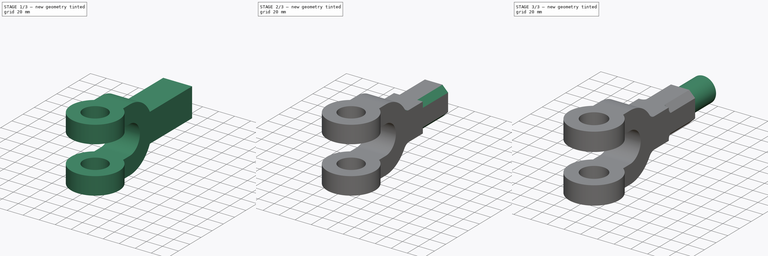
[diagram: build sequence overview — one tinted view per stage of 3, left to right]
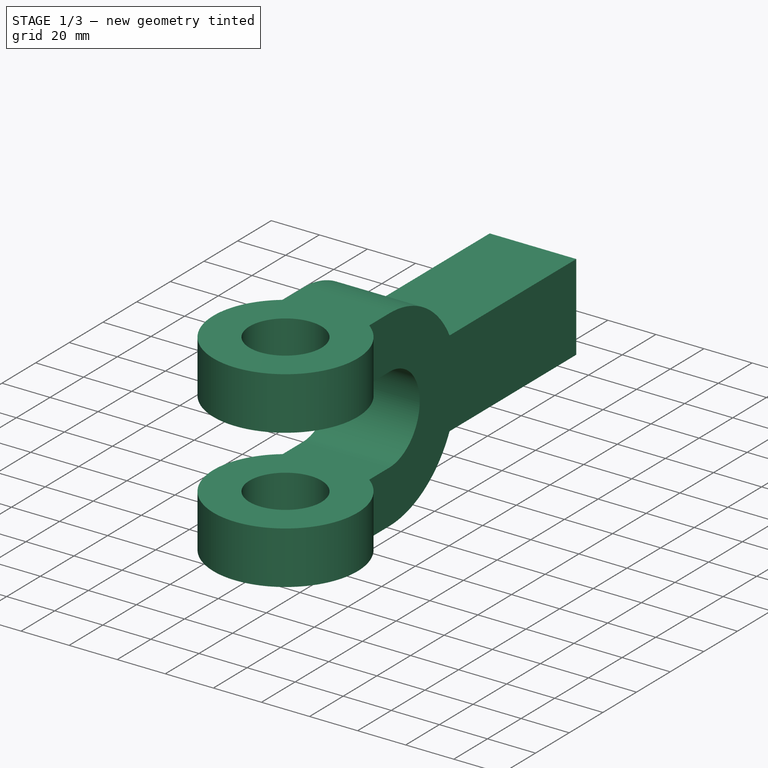
[diagram: stage 1 of 3 — iso view after this stage's code; geometry added in this stage tinted green]
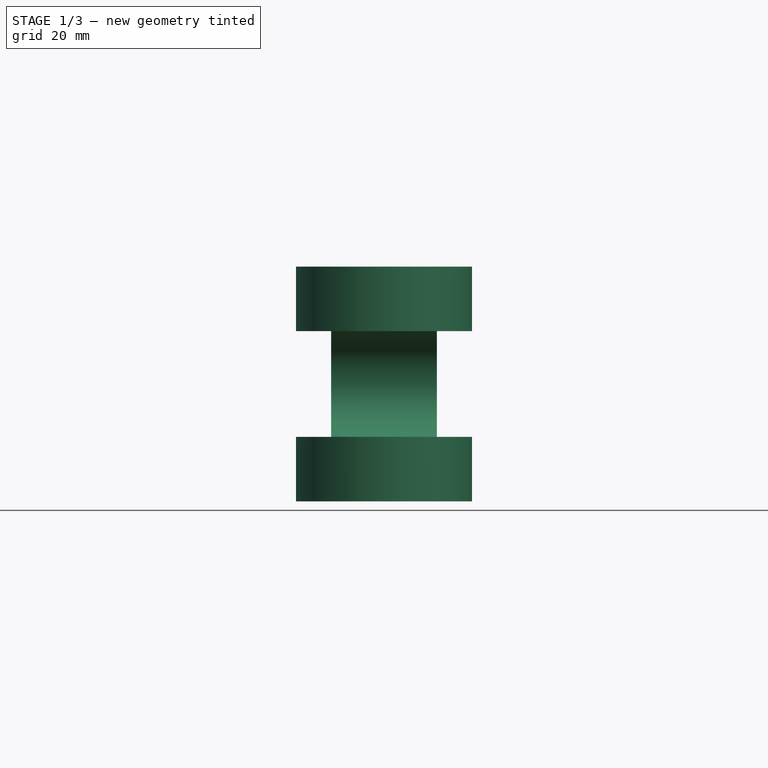
[diagram: stage 1 of 3 — front view after this stage's code; geometry added in this stage tinted green]
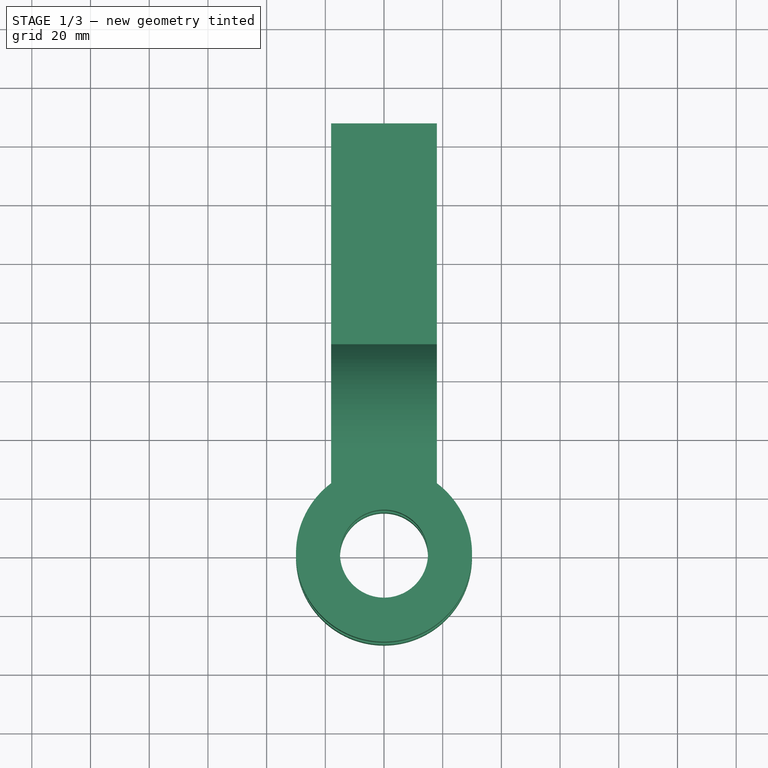
[diagram: stage 1 of 3 — top view after this stage's code; geometry added in this stage tinted green]
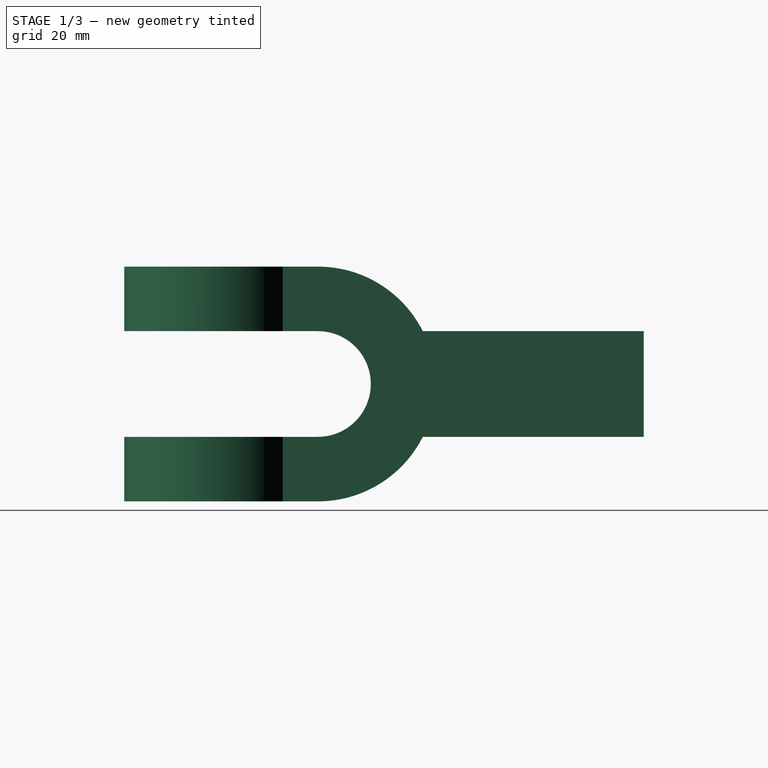
[diagram: stage 1 of 3 — right view after this stage's code; geometry added in this stage tinted green]
FCSTD DOCUMENT  (FreeCAD 1.0R39319 (Git))
Label: Doube_eye
License: All rights reserved
LicenseURL: https://en.wikipedia.org/wiki/All_rights_reserved
objects: Sketcher::SketchObject×4, PartDesign::Pad×2, PartDesign::Pocket×2, PartDesign::Fillet×2, PartDesign::Body×1
note: 27 computed .brp shape members not serialized (recipe doc carries the construction recipe); baked Part::Feature solids carry a one-line shape summary decoded from their .brp

FEATURE [Sketcher::SketchObject] Sketch
  ArcFitTolerance = 1e-06
  AttachmentSupport = -> [XY_Plane]
  FullyConstrained = true
  MakeInternals = false
  MapMode = 5
  sketch-geometry (6):
    g0: ArcOfCircle CenterX=0 CenterY=0 CenterZ=0 NormalX=0 NormalY=0 NormalZ=1 AngleXU=0 Radius=30 StartAngle=2.2143 EndAngle=7.21048
    g1: Circle CenterX=0 CenterY=0 CenterZ=0 NormalX=0 NormalY=0 NormalZ=1 AngleXU=0 Radius=15
    g2: LineSegment StartX=18 StartY=24 StartZ=0 EndX=18 EndY=147 EndZ=0
    g3: LineSegment StartX=18 StartY=147 StartZ=0 EndX=-18 EndY=147 EndZ=0
    g4: LineSegment StartX=-18 StartY=147 StartZ=0 EndX=-18 EndY=24 EndZ=0
    g5: GeomPoint [constr] X=0 Y=85.5 Z=0
  constraints (15):
    c: Coincident(g0,g-1)
    c: Diameter(g0) = 60
    c: Coincident(g1,g0)
    c: Diameter(g1) = 30
    c: Coincident(g2,g3)
    c: Coincident(g3,g4)
    c: Vertical(g2)
    c: Vertical(g4)
    c: Horizontal(g3)
    c: Symmetric(g4,g2,g5)
    c: PointOnObject(g5,g-2)
    c: Distance(g3,g3) = 36
    c: Coincident(g0,g2)
    c: Coincident(g0,g4)
    c: Distance(g0,g3) = 147
FEATURE [PartDesign::Pad] Pad
  Direction = (0,0,1)
  Length = 80
  Length2 = 10
  Profile = -> Sketch
  ReferenceAxis = -> Sketch [N_Axis]
  Refine = true
  Suppressed = false
  Type = 0
FEATURE [Sketcher::SketchObject] Sketch001
  ArcFitTolerance = 1e-06
  AttachmentOffset = pos=(0,40,15) rot=(0,0,1;0rad)
  AttachmentSupport = -> [Pad]
  ExternalGeometry = -> [Pad]
  FullyConstrained = true
  MakeInternals = false
  MapMode = 5
  Placement = pos=(33,0,40) rot=(0.57735,0.57735,0.57735;2.0944rad)
  sketch-geometry (12):
    g0: LineSegment StartX=-34 StartY=-18 StartZ=0 EndX=36 EndY=-18 EndZ=0
    g1: LineSegment StartX=36 StartY=18 StartZ=0 EndX=-34 EndY=18 EndZ=0
    g2: LineSegment StartX=-34 StartY=18 StartZ=0 EndX=-34 EndY=-18 EndZ=0
    g3: ArcOfCircle CenterX=36 CenterY=2.6e-15 CenterZ=0 NormalX=0 NormalY=0 NormalZ=1 AngleXU=0 Radius=18 StartAngle=4.71239 EndAngle=7.85398
    g4: ArcOfCircle CenterX=36 CenterY=2.6e-15 CenterZ=0 NormalX=0 NormalY=0 NormalZ=1 AngleXU=0 Radius=40 StartAngle=4.71239 EndAngle=5.81642
    g5: LineSegment StartX=147 StartY=18 StartZ=0 EndX=71.7211 EndY=18 EndZ=0
    g6: ArcOfCircle CenterX=36 CenterY=2.6e-15 CenterZ=0 NormalX=0 NormalY=0 NormalZ=1 AngleXU=0 Radius=40 StartAngle=0.466765 EndAngle=1.5708
    g7: LineSegment StartX=147 StartY=-18 StartZ=0 EndX=147 EndY=-40 EndZ=0
    g8: LineSegment StartX=147 StartY=-40 StartZ=0 EndX=36 EndY=-40 EndZ=0
    g9: LineSegment StartX=147 StartY=18 StartZ=0 EndX=147 EndY=40 EndZ=0
    g10: LineSegment StartX=147 StartY=40 StartZ=0 EndX=36 EndY=40 EndZ=0
    g11: LineSegment StartX=147 StartY=-18 StartZ=0 EndX=71.7211 EndY=-18 EndZ=0
  constraints (31):
    c: Coincident(g1,g2)
    c: Coincident(g2,g0)
    c: Horizontal(g0)
    c: Horizontal(g1)
    c: Vertical(g2)
    c: DistanceY(g2,g2) = 36
    c: Coincident(g4,g3)
    c: Tangent(g1,g3) = -1.5708
    c: Distance(g3,g-1) = 36
    c: Distance(g3,g2) = 70
    c: Horizontal(g5)
    c: Distance(g7,g5) = 36
    c: Equal(g4,g6)
    c: Coincident(g4,g6)
    c: Vertical(g6,g3)
    c: Coincident(g6,g5)
    c: Tangent(g4,g-4) = 1.5708
    c: Vertical(g7)
    c: Coincident(g7,g8)
    c: Coincident(g8,g4)
    c: Coincident(g5,g9)
    c: Coincident(g9,g10)
    c: Coincident(g10,g6)
    c: Coincident(g7,g11)
    c: Coincident(g11,g4)
    c: Horizontal(g11)
    c: Coincident(g9,g-8)
    c: Symmetric(g5,g7,g-1)
    c: Coincident(g7,g-8)
    c: PointOnObject(g6,g-3)
    c: Tangent(g3,g0) = -1.5708
FEATURE [PartDesign::Pocket] Pocket
  BaseFeature = -> Pad
  Direction = (-1,0,0)
  Length = 5
  Length2 = 5
  Profile = -> Sketch001
  ReferenceAxis = -> Sketch001 [N_Axis]
  Refine = true
  Suppressed = false
  Type = 1
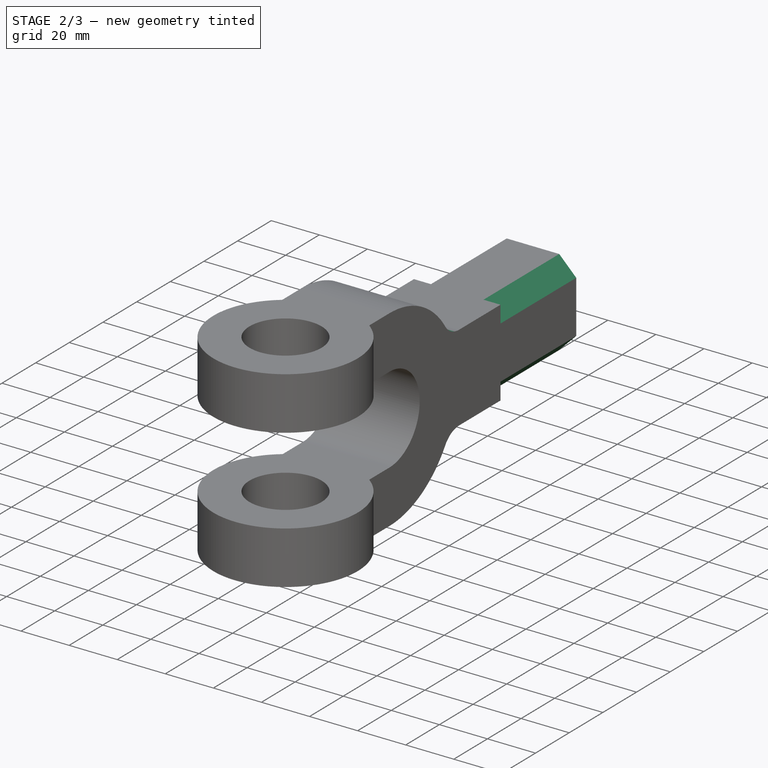
[diagram: stage 2 of 3 — iso view after this stage's code; geometry added in this stage tinted green]
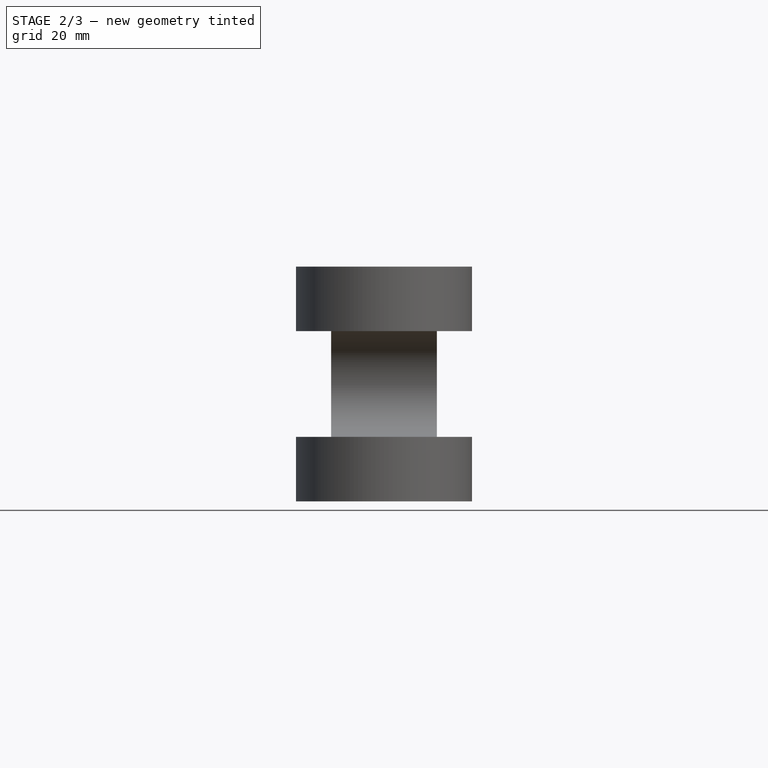
[diagram: stage 2 of 3 — front view after this stage's code; geometry added in this stage tinted green]
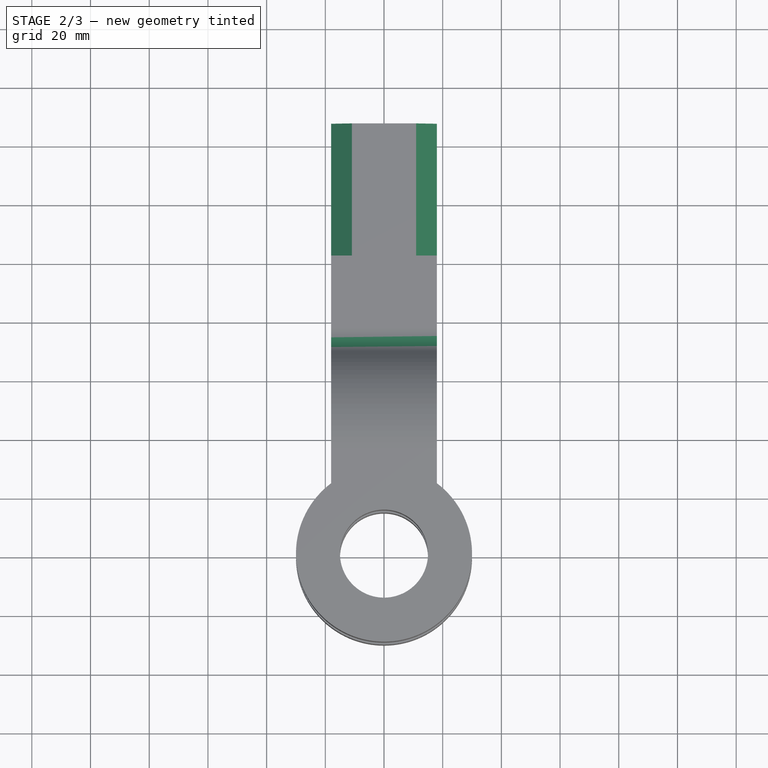
[diagram: stage 2 of 3 — top view after this stage's code; geometry added in this stage tinted green]
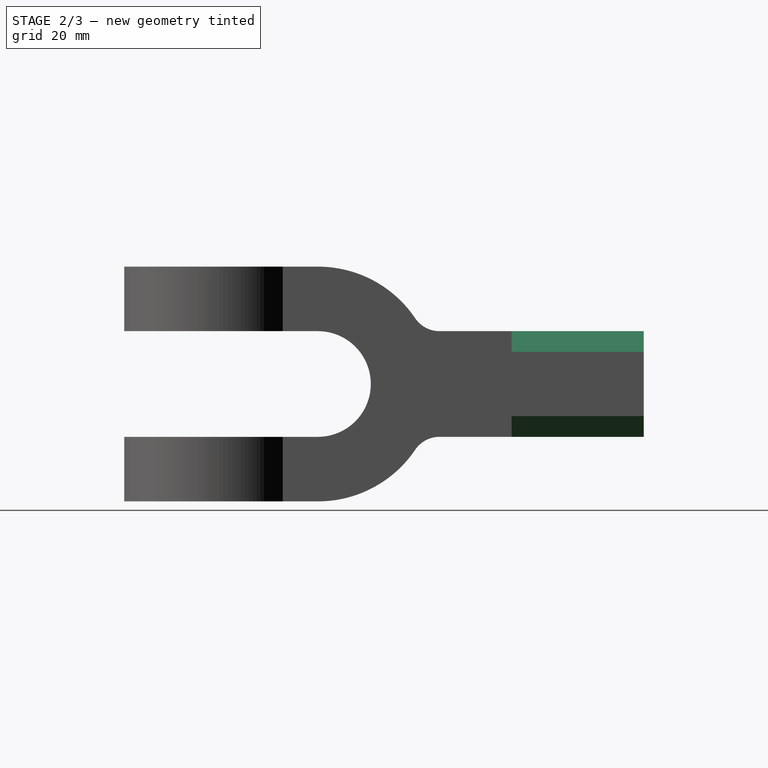
[diagram: stage 2 of 3 — right view after this stage's code; geometry added in this stage tinted green]
FEATURE [PartDesign::Fillet] Fillet
  Base = -> Pocket [Edge35,Edge31]
  BaseFeature = -> Pocket
  Radius = 10
  Refine = true
  SupportTransform = false
  Suppressed = false
  UseAllEdges = false
FEATURE [Sketcher::SketchObject] Sketch002
  ArcFitTolerance = 1e-06
  AttachmentSupport = -> [Fillet]
  ExternalGeometry = -> [Fillet]
  FullyConstrained = true
  MakeInternals = false
  MapMode = 5
  Placement = pos=(0,147,0) rot=(0,0.707107,0.707107;3.14159rad)
  sketch-geometry (12):
    g0: LineSegment StartX=-18 StartY=58 StartZ=0 EndX=-10.9289 EndY=58 EndZ=0
    g1: LineSegment StartX=-10.9289 StartY=58 StartZ=0 EndX=-18 EndY=50.9289 EndZ=0
    g2: LineSegment StartX=-18 StartY=50.9289 StartZ=0 EndX=-18 EndY=58 EndZ=0
    g3: LineSegment StartX=-18 StartY=22 StartZ=0 EndX=-10.9289 EndY=22 EndZ=0
    g4: LineSegment StartX=-10.9289 StartY=22 StartZ=0 EndX=-18 EndY=29.0711 EndZ=0
    g5: LineSegment StartX=-18 StartY=29.0711 StartZ=0 EndX=-18 EndY=22 EndZ=0
    g6: LineSegment StartX=18 StartY=22 StartZ=0 EndX=10.9289 EndY=22 EndZ=0
    g7: LineSegment StartX=10.9289 StartY=22 StartZ=0 EndX=18 EndY=29.0711 EndZ=0
    g8: LineSegment StartX=18 StartY=29.0711 StartZ=0 EndX=18 EndY=22 EndZ=0
    g9: LineSegment StartX=18 StartY=58 StartZ=0 EndX=10.9289 EndY=58 EndZ=0
    g10: LineSegment StartX=10.9289 StartY=58 StartZ=0 EndX=18 EndY=50.9289 EndZ=0
    g11: LineSegment StartX=18 StartY=50.9289 StartZ=0 EndX=18 EndY=58 EndZ=0
  constraints (32):
    c: Coincident(g-4,g0)
    c: PointOnObject(g0,g-3)
    c: Coincident(g0,g1)
    c: PointOnObject(g1,g-4)
    c: Coincident(g1,g2)
    c: Coincident(g-6,g3)
    c: PointOnObject(g3,g-6)
    c: Coincident(g3,g4)
    c: PointOnObject(g4,g-4)
    c: Coincident(g4,g5)
    c: Coincident(g5,g3)
    c: Coincident(g-6,g6)
    c: PointOnObject(g6,g-6)
    c: Coincident(g6,g7)
    c: PointOnObject(g7,g-5)
    c: Coincident(g7,g8)
    c: Coincident(g8,g6)
    c: Coincident(g-5,g9)
    c: PointOnObject(g9,g-3)
    c: Coincident(g9,g10)
    c: PointOnObject(g10,g-5)
    c: Coincident(g10,g11)
    c: Coincident(g11,g9)
    c: Equal(g2,g0)
    c: Equal(g9,g11)
    c: Equal(g8,g6)
    c: Equal(g3,g5)
    c: Distance(g1,g1) = 10
    c: Distance(g10,g10) = 10
    c: Distance(g7,g7) = 10
    c: Distance(g4,g4) = 10
    c: Coincident(g2,g0)
FEATURE [PartDesign::Pocket] Pocket001
  BaseFeature = -> Fillet
  Direction = (0,-1,2e-16)
  Length = 45
  Length2 = 5
  Profile = -> Sketch002
  ReferenceAxis = -> Sketch002 [N_Axis]
  Refine = true
  Suppressed = false
  Type = 0
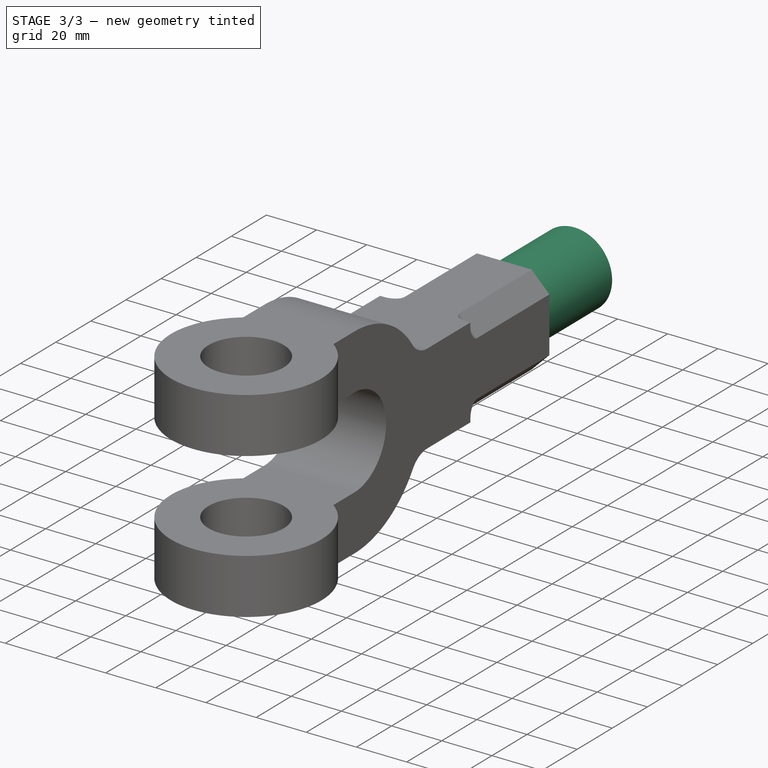
[diagram: stage 3 of 3 — iso view after this stage's code; geometry added in this stage tinted green]
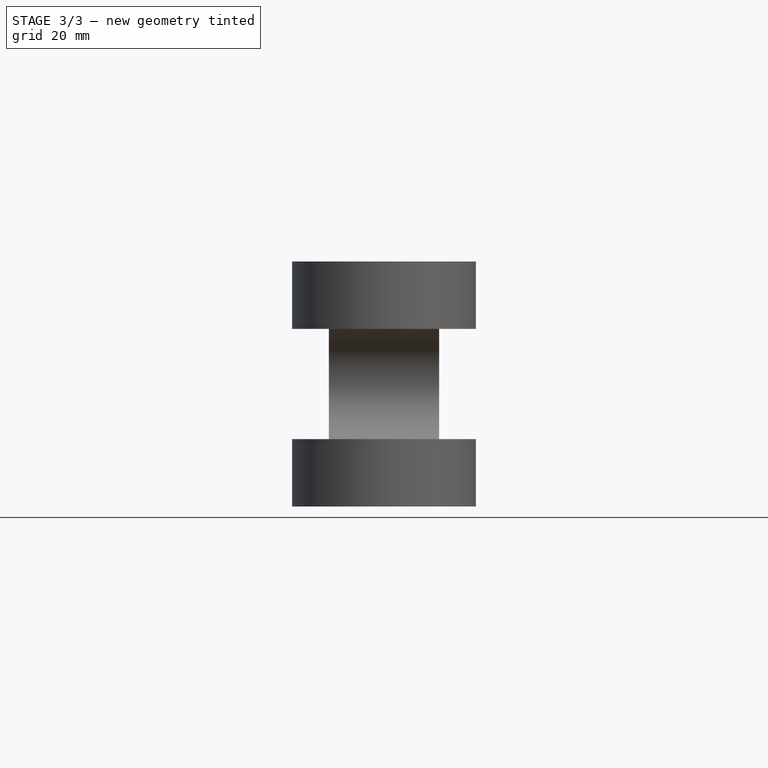
[diagram: stage 3 of 3 — front view after this stage's code; geometry added in this stage tinted green]
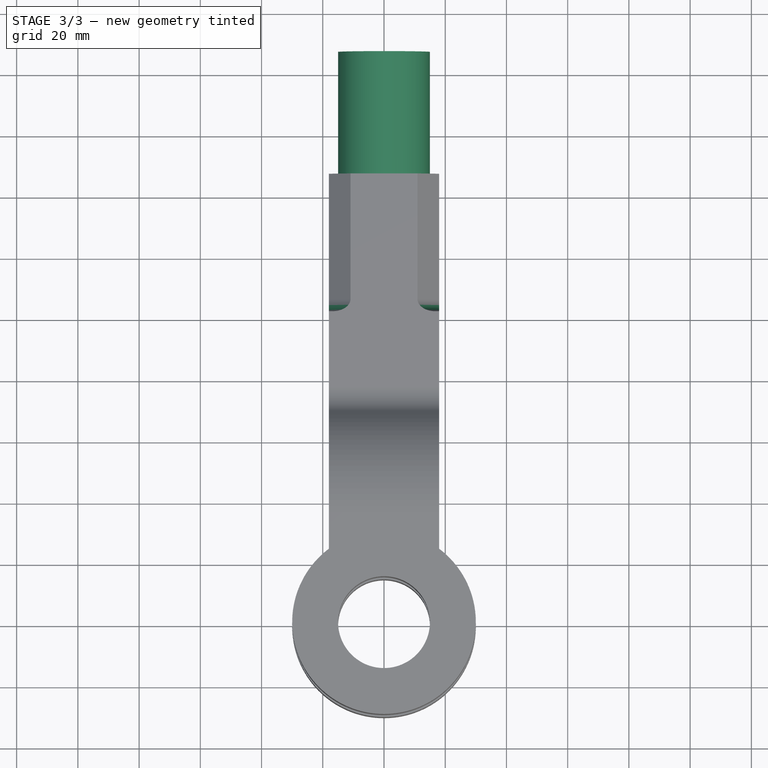
[diagram: stage 3 of 3 — top view after this stage's code; geometry added in this stage tinted green]
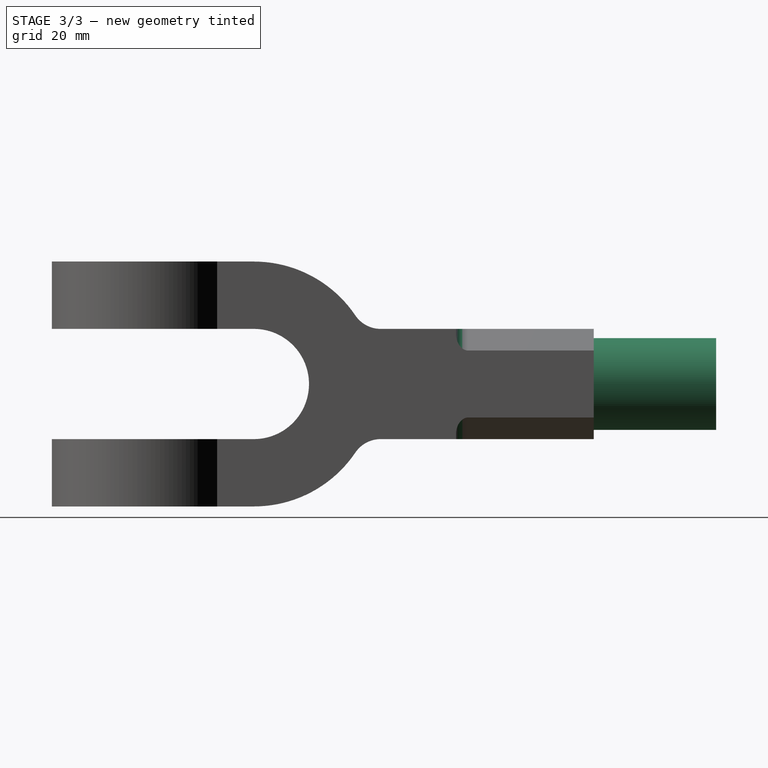
[diagram: stage 3 of 3 — right view after this stage's code; geometry added in this stage tinted green]
FEATURE [PartDesign::Fillet] Fillet001
  Base = -> Pocket001 [Edge69,Edge28,Edge70,Edge36]
  BaseFeature = -> Pocket001
  Radius = 4
  Refine = true
  SupportTransform = false
  Suppressed = false
  UseAllEdges = false
FEATURE [Sketcher::SketchObject] Sketch003
  ArcFitTolerance = 1e-06
  AttachmentOffset = pos=(0,40,0) rot=(0,0,1;0rad)
  AttachmentSupport = -> [Fillet001]
  FullyConstrained = true
  MakeInternals = false
  MapMode = 5
  Placement = pos=(0,147,40) rot=(0,0.707107,0.707107;3.14159rad)
  sketch-geometry (1):
    g0: Circle CenterX=0 CenterY=0 CenterZ=0 NormalX=0 NormalY=0 NormalZ=1 AngleXU=0 Radius=15
  constraints (2):
    c: Coincident(g0,g-1)
    c: Diameter(g0) = 30
FEATURE [PartDesign::Pad] Pad001
  BaseFeature = -> Fillet001
  Direction = (0,1,-2e-16)
  Length = 40
  Length2 = 10
  Profile = -> Sketch003
  ReferenceAxis = -> Sketch003 [N_Axis]
  Refine = true
  Suppressed = false
  Type = 0
FEATURE [PartDesign::Body] Body  label="Double_eye"
  AllowCompound = false
  Group = -> [Sketch,Pad,Sketch001,Pocket,Fillet,Sketch002,Pocket001,Fillet001,Sketch003,Pad001]
  Origin = -> Origin
  Tip = -> Pad001
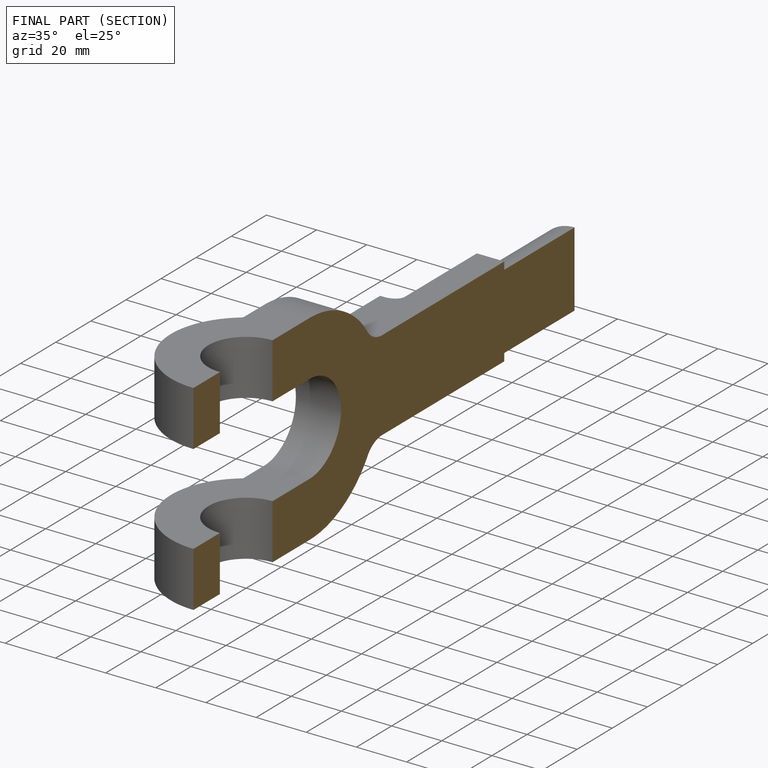
[diagram: finished part — half-section view (interior)]
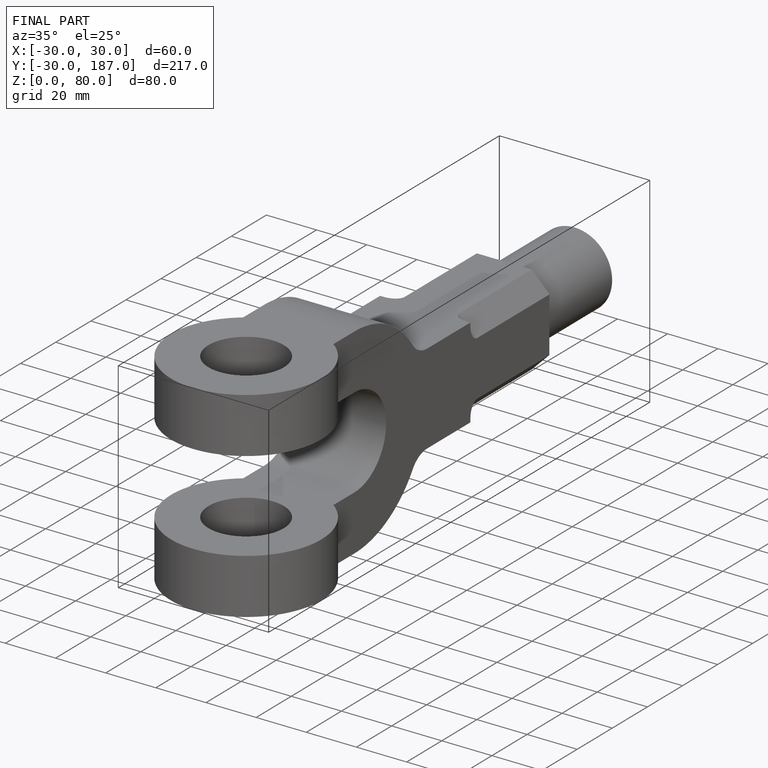
[diagram: finished part — iso view with bounding-box wireframe]
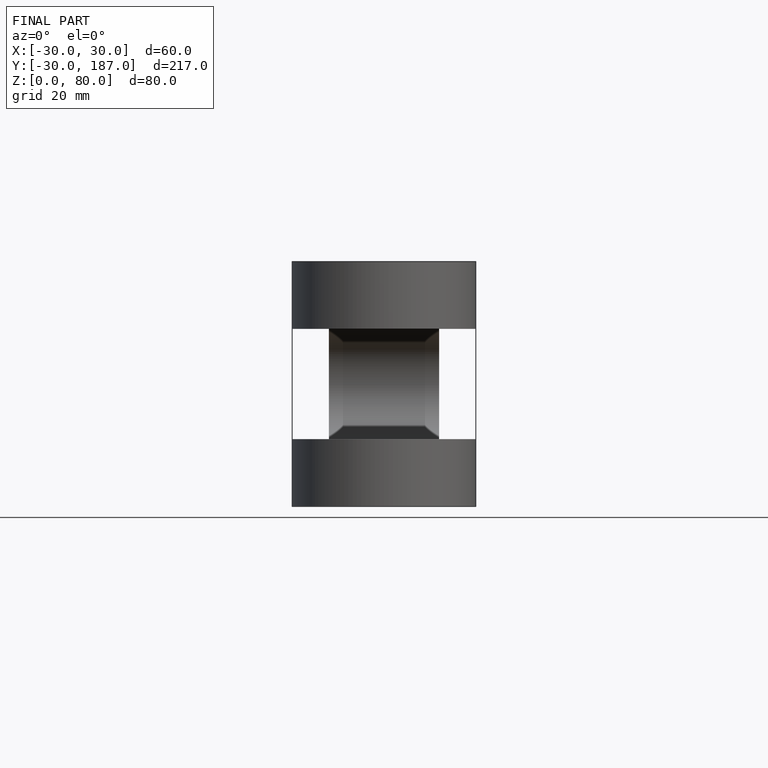
[diagram: finished part — front view with bounding-box wireframe]
